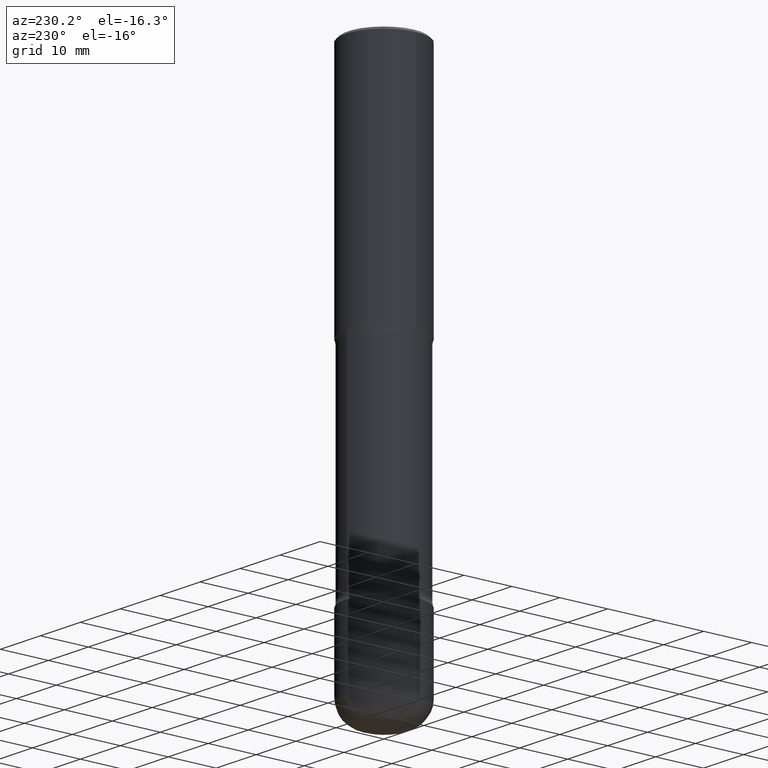
[diagram: clean part render]
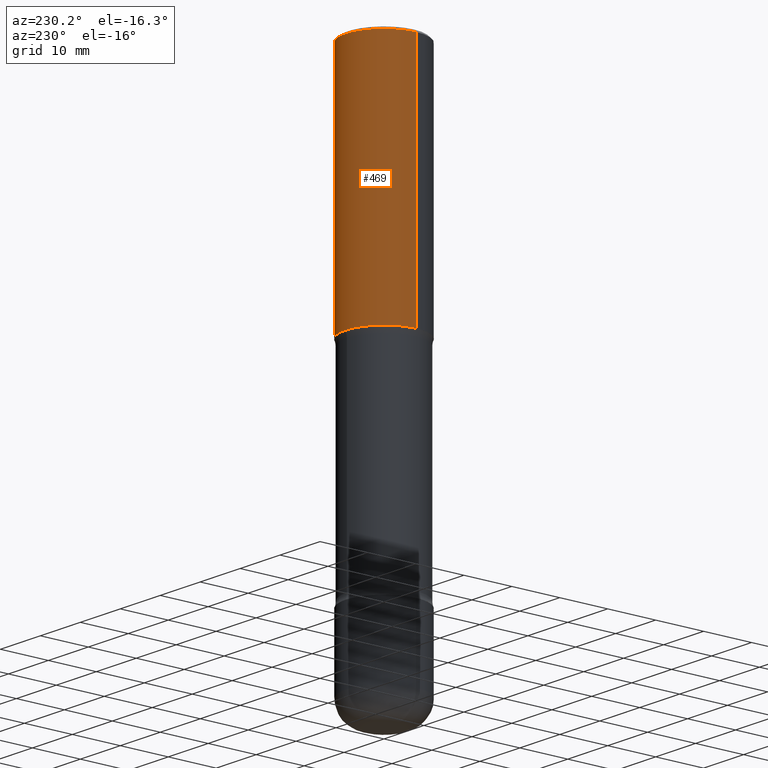
[diagram: same view with one face highlighted and labeled with its STEP entity id]
A machine part, auxiliary view. The second image highlights one B-rep face of the part: STEP entity #469.
In plain terms, the highlighted cylindrical surface (partial cylindrical patch) has radius 7.9997 mm, axis along (-0, 0, 1).
Its self-contained STEP definition (entity closure, byte-faithful):
#10 = CARTESIAN_POINT ( 'NONE',  ( 4.813905344975441835E-29, -6.872981015512731707E-15, -1.968500000000000139 ) ) ;
#42 = CIRCLE ( 'NONE', #122, 0.3149499999999998967 ) ;
#57 = DIRECTION ( 'NONE',  ( -2.445468806185136597E-29, 3.491481338843145583E-15, 1.000000000000000000 ) ) ;
#60 = AXIS2_PLACEMENT_3D ( 'NONE', #10, #57, #496 ) ;
#73 = DIRECTION ( 'NONE',  ( 1.000000000000000000, -6.982962677686265922E-15, 0.000000000000000000 ) ) ;
#80 = EDGE_CURVE ( 'NONE', #221, #97, #164, .T. ) ;
#97 = VERTEX_POINT ( 'NONE', #509 ) ;
#113 = CARTESIAN_POINT ( 'NONE',  ( 0.3149499999999998967, -2.230543471175006266E-15, -0.02000000000000006981 ) ) ;
#122 = AXIS2_PLACEMENT_3D ( 'NONE', #295, #468, #73 ) ;
#136 = EDGE_LOOP ( 'NONE', ( #530, #358, #478, #439 ) ) ;
#144 = LINE ( 'NONE', #328, #512 ) ;
#163 = CARTESIAN_POINT ( 'NONE',  ( 0.000000000000000000, 0.000000000000000000, 0.000000000000000000 ) ) ;
#164 = LINE ( 'NONE', #460, #415 ) ;
#206 = FACE_OUTER_BOUND ( 'NONE', #136, .T. ) ;
#209 = CARTESIAN_POINT ( 'NONE',  ( 0.3149500000000001743, -9.072265110850023156E-15, -1.968500000000000139 ) ) ;
#218 = VERTEX_POINT ( 'NONE', #209 ) ;
#221 = VERTEX_POINT ( 'NONE', #259 ) ;
#240 = DIRECTION ( 'NONE',  ( 1.000000000000000000, -6.982962677686266711E-15, 4.876176775795936353E-29 ) ) ;
#241 = DIRECTION ( 'NONE',  ( -2.445468806185136877E-29, 3.491481338843145188E-15, 1.000000000000000000 ) ) ;
#242 = EDGE_CURVE ( 'NONE', #218, #321, #144, .T. ) ;
#244 = DIRECTION ( 'NONE',  ( -2.445468806185136597E-29, 3.491481338843145583E-15, 1.000000000000000000 ) ) ;
#259 = CARTESIAN_POINT ( 'NONE',  ( -0.3149500000000001743, -1.233550974868359743E-15, -1.968500000000000139 ) ) ;
#288 = DIRECTION ( 'NONE',  ( -2.445468806185136877E-29, 3.491481338843145188E-15, 1.000000000000000000 ) ) ;
#295 = CARTESIAN_POINT ( 'NONE',  ( 4.890937612370289799E-31, -6.982962677686315028E-17, -0.02000000000000006981 ) ) ;
#310 = CIRCLE ( 'NONE', #60, 0.3149500000000001743 ) ;
#321 = VERTEX_POINT ( 'NONE', #113 ) ;
#325 = EDGE_CURVE ( 'NONE', #218, #221, #310, .T. ) ;
#328 = CARTESIAN_POINT ( 'NONE',  ( 0.3149500000000000077, -2.199284095337289871E-15, 1.535751875536930130E-29 ) ) ;
#338 = CYLINDRICAL_SURFACE ( 'NONE', #543, 0.3149500000000000077 ) ;
#358 = ORIENTED_EDGE ( 'NONE', *, *, #80, .T. ) ;
#403 = EDGE_CURVE ( 'NONE', #321, #97, #42, .T. ) ;
#415 = VECTOR ( 'NONE', #288, 39.37007874015748143 ) ;
#439 = ORIENTED_EDGE ( 'NONE', *, *, #242, .F. ) ;
#460 = CARTESIAN_POINT ( 'NONE',  ( -0.3149500000000000077, 2.237854346276435590E-15, -1.549218606675782676E-29 ) ) ;
#468 = DIRECTION ( 'NONE',  ( -2.445468806185136597E-29, 3.491481338843145583E-15, 1.000000000000000000 ) ) ;
#469 = ADVANCED_FACE ( 'NONE', ( #206 ), #338, .T. ) ;
#478 = ORIENTED_EDGE ( 'NONE', *, *, #403, .F. ) ;
#496 = DIRECTION ( 'NONE',  ( 1.000000000000000000, -6.982962677686269866E-15, 0.000000000000000000 ) ) ;
#509 = CARTESIAN_POINT ( 'NONE',  ( -0.3149499999999998967, 2.129454468560425784E-15, -0.02000000000000006981 ) ) ;
#512 = VECTOR ( 'NONE', #241, 39.37007874015748143 ) ;
#530 = ORIENTED_EDGE ( 'NONE', *, *, #325, .T. ) ;
#543 = AXIS2_PLACEMENT_3D ( 'NONE', #163, #244, #240 ) ;